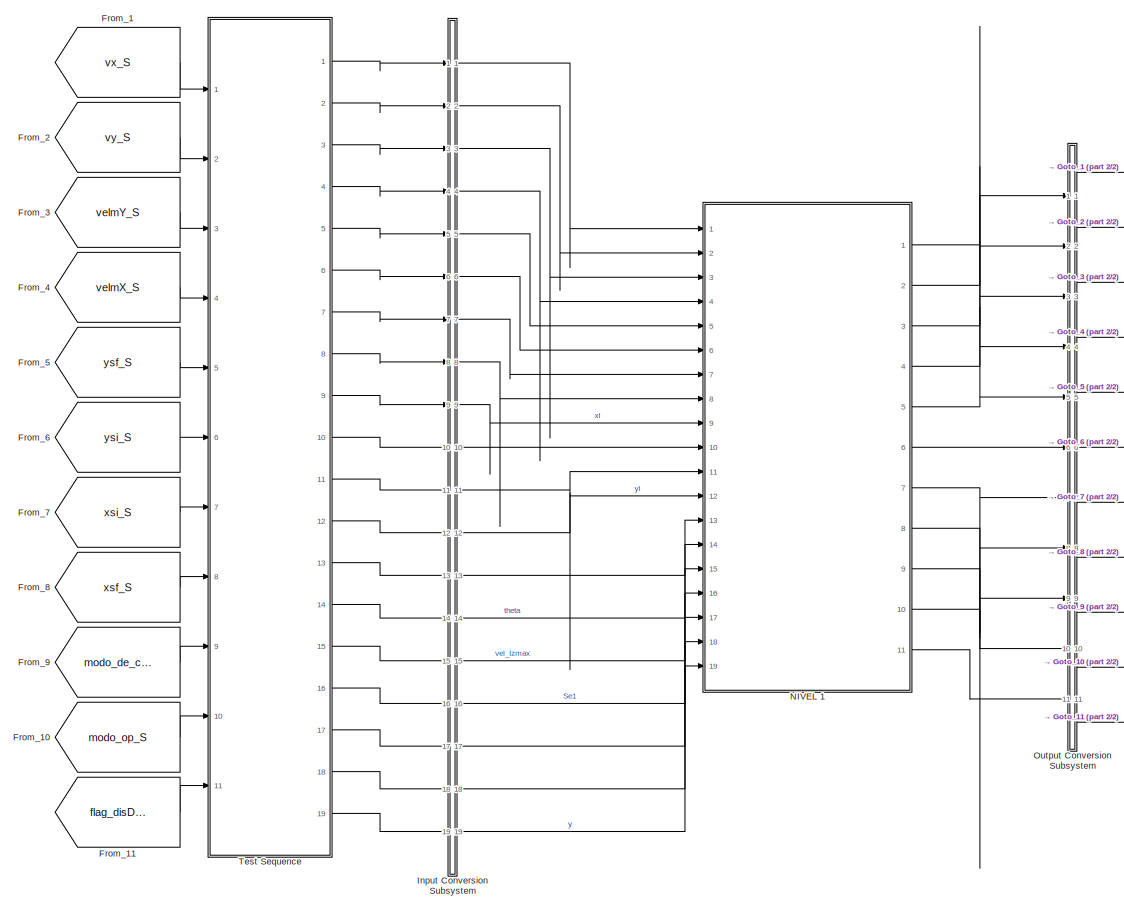
[diagram: root canvas - part 1/2, central region]
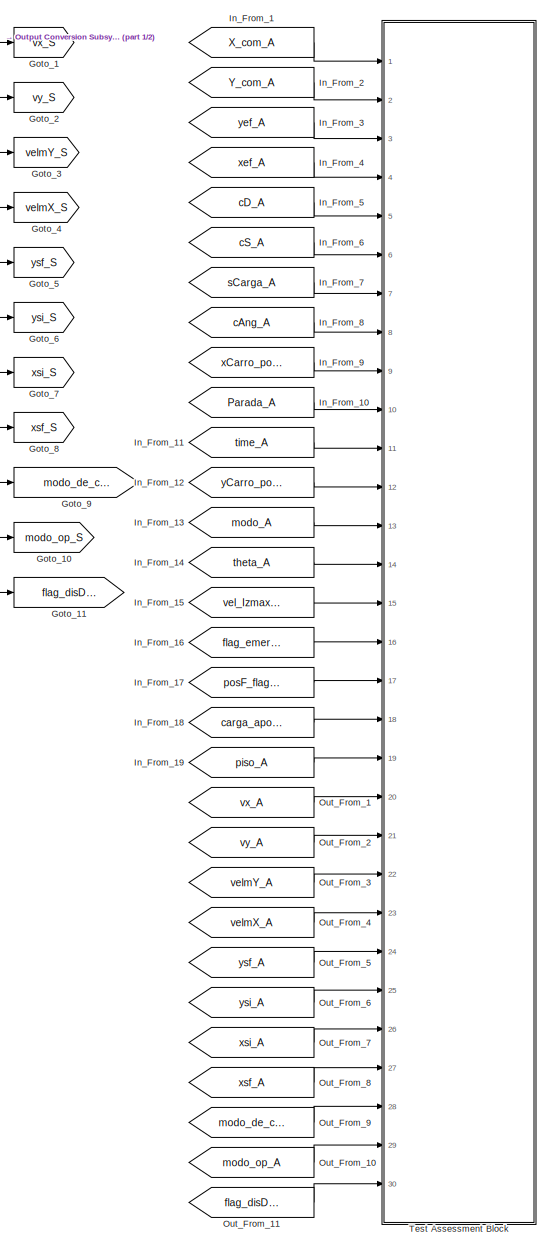
[diagram: root canvas - part 2/2, right side, full height]
MODEL slx_e65b3a4f7e40
KIND model
CONFIG AbsTol = auto
CONFIG EnableMultiTasking = off
CONFIG FixedStep = 1e-2
CONFIG MaxStep = 1e-4
CONFIG MinStep = auto
CONFIG RelTol = 1e-3
CONFIG SampleTimeConstraint = Unconstrained
CONFIG SolverName = FixedStepAuto
CONFIG StartTime = 0.0
CONFIG StopTime = inf
BLOCK [From] From_1
  GotoTag = vx_S
BLOCK [From] From_10
  GotoTag = modo_op_S
BLOCK [From] From_11
  GotoTag = flag_disDesP_S
BLOCK [From] From_2
  GotoTag = vy_S
BLOCK [From] From_3
  GotoTag = velmY_S
BLOCK [From] From_4
  GotoTag = velmX_S
BLOCK [From] From_5
  GotoTag = ysf_S
BLOCK [From] From_6
  GotoTag = ysi_S
BLOCK [From] From_7
  GotoTag = xsi_S
BLOCK [From] From_8
  GotoTag = xsf_S
BLOCK [From] From_9
  GotoTag = modo_de_control_S
BLOCK [Goto] Goto_1
  GotoTag = vx_S
BLOCK [Goto] Goto_10
  GotoTag = modo_op_S
BLOCK [Goto] Goto_11
  GotoTag = flag_disDesP_S
BLOCK [Goto] Goto_2
  GotoTag = vy_S
BLOCK [Goto] Goto_3
  GotoTag = velmY_S
BLOCK [Goto] Goto_4
  GotoTag = velmX_S
BLOCK [Goto] Goto_5
  GotoTag = ysf_S
BLOCK [Goto] Goto_6
  GotoTag = ysi_S
BLOCK [Goto] Goto_7
  GotoTag = xsi_S
BLOCK [Goto] Goto_8
  GotoTag = xsf_S
BLOCK [Goto] Goto_9
  GotoTag = modo_de_control_S
BLOCK [From] In_From_1
  GotoTag = X_com_A
  TagVisibility = global
BLOCK [From] In_From_10
  GotoTag = Parada_A
  TagVisibility = global
BLOCK [From] In_From_11
  GotoTag = time_A
  TagVisibility = global
BLOCK [From] In_From_12
  GotoTag = yCarro_pos_A
  TagVisibility = global
BLOCK [From] In_From_13
  GotoTag = modo_A
  TagVisibility = global
BLOCK [From] In_From_14
  GotoTag = theta_A
  TagVisibility = global
BLOCK [From] In_From_15
  GotoTag = vel_Izmax_A
  TagVisibility = global
BLOCK [From] In_From_16
  GotoTag = flag_emergencia_A
  TagVisibility = global
BLOCK [From] In_From_17
  GotoTag = posF_flag_A
  TagVisibility = global
BLOCK [From] In_From_18
  GotoTag = carga_apoyada_A
  TagVisibility = global
BLOCK [From] In_From_19
  GotoTag = piso_A
  TagVisibility = global
BLOCK [From] In_From_2
  GotoTag = Y_com_A
  TagVisibility = global
BLOCK [From] In_From_3
  GotoTag = yef_A
  TagVisibility = global
BLOCK [From] In_From_4
  GotoTag = xef_A
  TagVisibility = global
BLOCK [From] In_From_5
  GotoTag = cD_A
  TagVisibility = global
BLOCK [From] In_From_6
  GotoTag = cS_A
  TagVisibility = global
BLOCK [From] In_From_7
  GotoTag = sCarga_A
  TagVisibility = global
BLOCK [From] In_From_8
  GotoTag = cAng_A
  TagVisibility = global
BLOCK [From] In_From_9
  GotoTag = xCarro_pos_A
  TagVisibility = global
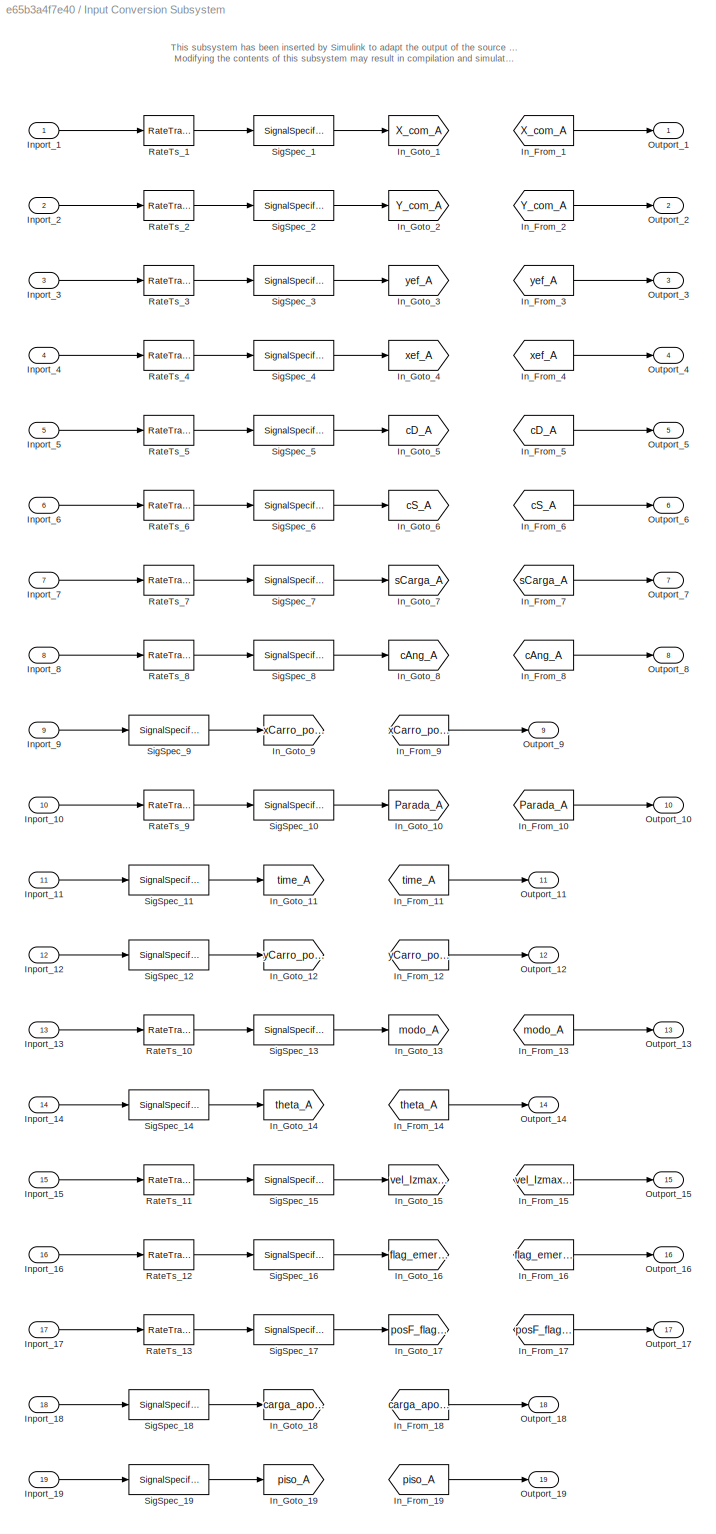
BLOCK [SubSystem] Input Conversion Subsystem
  AttributesFormatString = %<Description>
  Description = Signal spec.\nand routing
  Permissions = ReadOnly
  PermitHierarchicalResolution = ExplicitOnly
  Ports = [19, 19]
  RequestExecContextInheritance = off
  Tag = __SLT_ICS__
  UserDataPersistent = on
BLOCK [From] Input Conversion Subsystem/In_From_1
  GotoTag = X_com_A
  TagVisibility = global
BLOCK [From] Input Conversion Subsystem/In_From_10
  GotoTag = Parada_A
  TagVisibility = global
BLOCK [From] Input Conversion Subsystem/In_From_11
  GotoTag = time_A
  TagVisibility = global
BLOCK [From] Input Conversion Subsystem/In_From_12
  GotoTag = yCarro_pos_A
  TagVisibility = global
BLOCK [From] Input Conversion Subsystem/In_From_13
  GotoTag = modo_A
  TagVisibility = global
BLOCK [From] Input Conversion Subsystem/In_From_14
  GotoTag = theta_A
  TagVisibility = global
BLOCK [From] Input Conversion Subsystem/In_From_15
  GotoTag = vel_Izmax_A
  TagVisibility = global
BLOCK [From] Input Conversion Subsystem/In_From_16
  GotoTag = flag_emergencia_A
  TagVisibility = global
BLOCK [From] Input Conversion Subsystem/In_From_17
  GotoTag = posF_flag_A
  TagVisibility = global
BLOCK [From] Input Conversion Subsystem/In_From_18
  GotoTag = carga_apoyada_A
  TagVisibility = global
BLOCK [From] Input Conversion Subsystem/In_From_19
  GotoTag = piso_A
  TagVisibility = global
BLOCK [From] Input Conversion Subsystem/In_From_2
  GotoTag = Y_com_A
  TagVisibility = global
BLOCK [From] Input Conversion Subsystem/In_From_3
  GotoTag = yef_A
  TagVisibility = global
BLOCK [From] Input Conversion Subsystem/In_From_4
  GotoTag = xef_A
  TagVisibility = global
BLOCK [From] Input Conversion Subsystem/In_From_5
  GotoTag = cD_A
  TagVisibility = global
BLOCK [From] Input Conversion Subsystem/In_From_6
  GotoTag = cS_A
  TagVisibility = global
BLOCK [From] Input Conversion Subsystem/In_From_7
  GotoTag = sCarga_A
  TagVisibility = global
BLOCK [From] Input Conversion Subsystem/In_From_8
  GotoTag = cAng_A
  TagVisibility = global
BLOCK [From] Input Conversion Subsystem/In_From_9
  GotoTag = xCarro_pos_A
  TagVisibility = global
BLOCK [Goto] Input Conversion Subsystem/In_Goto_1
  GotoTag = X_com_A
  TagVisibility = global
BLOCK [Goto] Input Conversion Subsystem/In_Goto_10
  GotoTag = Parada_A
  TagVisibility = global
BLOCK [Goto] Input Conversion Subsystem/In_Goto_11
  GotoTag = time_A
  TagVisibility = global
BLOCK [Goto] Input Conversion Subsystem/In_Goto_12
  GotoTag = yCarro_pos_A
  TagVisibility = global
BLOCK [Goto] Input Conversion Subsystem/In_Goto_13
  GotoTag = modo_A
  TagVisibility = global
BLOCK [Goto] Input Conversion Subsystem/In_Goto_14
  GotoTag = theta_A
  TagVisibility = global
BLOCK [Goto] Input Conversion Subsystem/In_Goto_15
  GotoTag = vel_Izmax_A
  TagVisibility = global
BLOCK [Goto] Input Conversion Subsystem/In_Goto_16
  GotoTag = flag_emergencia_A
  TagVisibility = global
BLOCK [Goto] Input Conversion Subsystem/In_Goto_17
  GotoTag = posF_flag_A
  TagVisibility = global
BLOCK [Goto] Input Conversion Subsystem/In_Goto_18
  GotoTag = carga_apoyada_A
  TagVisibility = global
BLOCK [Goto] Input Conversion Subsystem/In_Goto_19
  GotoTag = piso_A
  TagVisibility = global
BLOCK [Goto] Input Conversion Subsystem/In_Goto_2
  GotoTag = Y_com_A
  TagVisibility = global
BLOCK [Goto] Input Conversion Subsystem/In_Goto_3
  GotoTag = yef_A
  TagVisibility = global
BLOCK [Goto] Input Conversion Subsystem/In_Goto_4
  GotoTag = xef_A
  TagVisibility = global
BLOCK [Goto] Input Conversion Subsystem/In_Goto_5
  GotoTag = cD_A
  TagVisibility = global
BLOCK [Goto] Input Conversion Subsystem/In_Goto_6
  GotoTag = cS_A
  TagVisibility = global
BLOCK [Goto] Input Conversion Subsystem/In_Goto_7
  GotoTag = sCarga_A
  TagVisibility = global
BLOCK [Goto] Input Conversion Subsystem/In_Goto_8
  GotoTag = cAng_A
  TagVisibility = global
BLOCK [Goto] Input Conversion Subsystem/In_Goto_9
  GotoTag = xCarro_pos_A
  TagVisibility = global
BLOCK [Inport] Input Conversion Subsystem/Inport_1
BLOCK [Inport] Input Conversion Subsystem/Inport_10
  Port = 10
BLOCK [Inport] Input Conversion Subsystem/Inport_11
  Port = 11
BLOCK [Inport] Input Conversion Subsystem/Inport_12
  Port = 12
BLOCK [Inport] Input Conversion Subsystem/Inport_13
  Port = 13
BLOCK [Inport] Input Conversion Subsystem/Inport_14
  Port = 14
BLOCK [Inport] Input Conversion Subsystem/Inport_15
  Port = 15
BLOCK [Inport] Input Conversion Subsystem/Inport_16
  Port = 16
BLOCK [Inport] Input Conversion Subsystem/Inport_17
  Port = 17
BLOCK [Inport] Input Conversion Subsystem/Inport_18
  Port = 18
BLOCK [Inport] Input Conversion Subsystem/Inport_19
  Port = 19
BLOCK [Inport] Input Conversion Subsystem/Inport_2
  Port = 2
BLOCK [Inport] Input Conversion Subsystem/Inport_3
  Port = 3
BLOCK [Inport] Input Conversion Subsystem/Inport_4
  Port = 4
BLOCK [Inport] Input Conversion Subsystem/Inport_5
  Port = 5
BLOCK [Inport] Input Conversion Subsystem/Inport_6
  Port = 6
BLOCK [Inport] Input Conversion Subsystem/Inport_7
  Port = 7
BLOCK [Inport] Input Conversion Subsystem/Inport_8
  Port = 8
BLOCK [Inport] Input Conversion Subsystem/Inport_9
  Port = 9
BLOCK [Outport] Input Conversion Subsystem/Outport_1
BLOCK [Outport] Input Conversion Subsystem/Outport_10
  Port = 10
BLOCK [Outport] Input Conversion Subsystem/Outport_11
  Port = 11
BLOCK [Outport] Input Conversion Subsystem/Outport_12
  Port = 12
BLOCK [Outport] Input Conversion Subsystem/Outport_13
  Port = 13
BLOCK [Outport] Input Conversion Subsystem/Outport_14
  Port = 14
BLOCK [Outport] Input Conversion Subsystem/Outport_15
  Port = 15
BLOCK [Outport] Input Conversion Subsystem/Outport_16
  Port = 16
BLOCK [Outport] Input Conversion Subsystem/Outport_17
  Port = 17
BLOCK [Outport] Input Conversion Subsystem/Outport_18
  Port = 18
BLOCK [Outport] Input Conversion Subsystem/Outport_19
  Port = 19
BLOCK [Outport] Input Conversion Subsystem/Outport_2
  Port = 2
BLOCK [Outport] Input Conversion Subsystem/Outport_3
  Port = 3
BLOCK [Outport] Input Conversion Subsystem/Outport_4
  Port = 4
BLOCK [Outport] Input Conversion Subsystem/Outport_5
  Port = 5
BLOCK [Outport] Input Conversion Subsystem/Outport_6
  Port = 6
BLOCK [Outport] Input Conversion Subsystem/Outport_7
  Port = 7
BLOCK [Outport] Input Conversion Subsystem/Outport_8
  Port = 8
BLOCK [Outport] Input Conversion Subsystem/Outport_9
  Port = 9
BLOCK [RateTransition] Input Conversion Subsystem/RateTs_1
  OutPortSampleTime = 0.01
BLOCK [RateTransition] Input Conversion Subsystem/RateTs_10
  OutPortSampleTime = 0.01
BLOCK [RateTransition] Input Conversion Subsystem/RateTs_11
  OutPortSampleTime = 0.01
BLOCK [RateTransition] Input Conversion Subsystem/RateTs_12
  OutPortSampleTime = 0.01
BLOCK [RateTransition] Input Conversion Subsystem/RateTs_13
  OutPortSampleTime = [-1, 0]
BLOCK [RateTransition] Input Conversion Subsystem/RateTs_2
  OutPortSampleTime = 0.01
BLOCK [RateTransition] Input Conversion Subsystem/RateTs_3
  OutPortSampleTime = [-1, 0]
BLOCK [RateTransition] Input Conversion Subsystem/RateTs_4
  OutPortSampleTime = [-1, 0]
BLOCK [RateTransition] Input Conversion Subsystem/RateTs_5
  OutPortSampleTime = 0.01
BLOCK [RateTransition] Input Conversion Subsystem/RateTs_6
  OutPortSampleTime = 0.01
BLOCK [RateTransition] Input Conversion Subsystem/RateTs_7
  OutPortSampleTime = [-1, 0]
BLOCK [RateTransition] Input Conversion Subsystem/RateTs_8
  OutPortSampleTime = [-1, 0]
BLOCK [RateTransition] Input Conversion Subsystem/RateTs_9
  OutPortSampleTime = 0.01
BLOCK [SignalSpecification] Input Conversion Subsystem/SigSpec_1
  Dimensions = [1]
  OutDataTypeStr = double
  SampleTime = 0.01
  SignalType = real
  VarSizeSig = No
BLOCK [SignalSpecification] Input Conversion Subsystem/SigSpec_10
  Dimensions = [1]
  OutDataTypeStr = double
  SampleTime = 0.01
  SignalType = real
  VarSizeSig = No
BLOCK [SignalSpecification] Input Conversion Subsystem/SigSpec_11
  Dimensions = [1]
  OutDataTypeStr = double
  SampleTime = [-1, 0]
  SignalType = real
  VarSizeSig = No
BLOCK [SignalSpecification] Input Conversion Subsystem/SigSpec_12
  Dimensions = [1]
  OutDataTypeStr = double
  SampleTime = [-1, 0]
  SignalType = real
  VarSizeSig = No
BLOCK [SignalSpecification] Input Conversion Subsystem/SigSpec_13
  Dimensions = [1]
  OutDataTypeStr = double
  SampleTime = 0.01
  SignalType = real
  VarSizeSig = No
BLOCK [SignalSpecification] Input Conversion Subsystem/SigSpec_14
  Dimensions = [1]
  OutDataTypeStr = double
  SampleTime = [-1, 0]
  SignalType = real
  VarSizeSig = No
BLOCK [SignalSpecification] Input Conversion Subsystem/SigSpec_15
  Dimensions = [1]
  OutDataTypeStr = double
  SampleTime = 0.01
  SignalType = real
  VarSizeSig = No
BLOCK [SignalSpecification] Input Conversion Subsystem/SigSpec_16
  Dimensions = [1]
  OutDataTypeStr = double
  SampleTime = 0.01
  SignalType = real
  VarSizeSig = No
BLOCK [SignalSpecification] Input Conversion Subsystem/SigSpec_17
  Dimensions = [1]
  OutDataTypeStr = double
  SampleTime = [-1, 0]
  SignalType = real
  VarSizeSig = No
BLOCK [SignalSpecification] Input Conversion Subsystem/SigSpec_18
  Dimensions = [1]
  OutDataTypeStr = double
  SampleTime = [-1, 0]
  SignalType = real
  VarSizeSig = No
BLOCK [SignalSpecification] Input Conversion Subsystem/SigSpec_19
  Dimensions = [1]
  OutDataTypeStr = double
  SampleTime = [-1, 0]
  SignalType = real
  VarSizeSig = No
BLOCK [SignalSpecification] Input Conversion Subsystem/SigSpec_2
  Dimensions = [1]
  OutDataTypeStr = double
  SampleTime = 0.01
  SignalType = real
  VarSizeSig = No
BLOCK [SignalSpecification] Input Conversion Subsystem/SigSpec_3
  Dimensions = [1]
  OutDataTypeStr = double
  SampleTime = [-1, 0]
  SignalType = real
  VarSizeSig = No
BLOCK [SignalSpecification] Input Conversion Subsystem/SigSpec_4
  Dimensions = [1]
  OutDataTypeStr = double
  SampleTime = [-1, 0]
  SignalType = real
  VarSizeSig = No
BLOCK [SignalSpecification] Input Conversion Subsystem/SigSpec_5
  Dimensions = [1]
  OutDataTypeStr = double
  SampleTime = 0.01
  SignalType = real
  VarSizeSig = No
BLOCK [SignalSpecification] Input Conversion Subsystem/SigSpec_6
  Dimensions = [1]
  OutDataTypeStr = double
  SampleTime = 0.01
  SignalType = real
  VarSizeSig = No
BLOCK [SignalSpecification] Input Conversion Subsystem/SigSpec_7
  Dimensions = [1]
  OutDataTypeStr = double
  SampleTime = [-1, 0]
  SignalType = real
  VarSizeSig = No
BLOCK [SignalSpecification] Input Conversion Subsystem/SigSpec_8
  Dimensions = [1]
  OutDataTypeStr = double
  SampleTime = [-1, 0]
  SignalType = real
  VarSizeSig = No
BLOCK [SignalSpecification] Input Conversion Subsystem/SigSpec_9
  Dimensions = [1]
  OutDataTypeStr = double
  SampleTime = [-1, 0]
  SignalType = real
  VarSizeSig = No
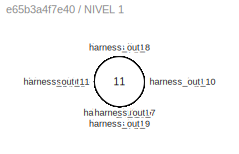
BLOCK [SubSystem] NIVEL 1
  Ports = [19, 11]
  RequestExecContextInheritance = off
  Tag = __SL_testing_harness_stub_
BLOCK [Inport] NIVEL 1/harness_in_1
BLOCK [Inport] NIVEL 1/harness_in_10
  Port = 10
BLOCK [Inport] NIVEL 1/harness_in_11
  Port = 11
BLOCK [Inport] NIVEL 1/harness_in_12
  Port = 12
BLOCK [Inport] NIVEL 1/harness_in_13
  Port = 13
BLOCK [Inport] NIVEL 1/harness_in_14
  Port = 14
BLOCK [Inport] NIVEL 1/harness_in_15
  Port = 15
BLOCK [Inport] NIVEL 1/harness_in_16
  Port = 16
BLOCK [Inport] NIVEL 1/harness_in_17
  Port = 17
BLOCK [Inport] NIVEL 1/harness_in_18
  Port = 18
BLOCK [Inport] NIVEL 1/harness_in_19
  Port = 19
BLOCK [Inport] NIVEL 1/harness_in_2
  Port = 2
BLOCK [Inport] NIVEL 1/harness_in_3
  Port = 3
BLOCK [Inport] NIVEL 1/harness_in_4
  Port = 4
BLOCK [Inport] NIVEL 1/harness_in_5
  Port = 5
BLOCK [Inport] NIVEL 1/harness_in_6
  Port = 6
BLOCK [Inport] NIVEL 1/harness_in_7
  Port = 7
BLOCK [Inport] NIVEL 1/harness_in_8
  Port = 8
BLOCK [Inport] NIVEL 1/harness_in_9
  Port = 9
BLOCK [Outport] NIVEL 1/harness_out_1
BLOCK [Outport] NIVEL 1/harness_out_10
  Port = 10
BLOCK [Outport] NIVEL 1/harness_out_11
  Port = 11
BLOCK [Outport] NIVEL 1/harness_out_2
  Port = 2
BLOCK [Outport] NIVEL 1/harness_out_3
  Port = 3
BLOCK [Outport] NIVEL 1/harness_out_4
  Port = 4
BLOCK [Outport] NIVEL 1/harness_out_5
  Port = 5
BLOCK [Outport] NIVEL 1/harness_out_6
  Port = 6
BLOCK [Outport] NIVEL 1/harness_out_7
  Port = 7
BLOCK [Outport] NIVEL 1/harness_out_8
  Port = 8
BLOCK [Outport] NIVEL 1/harness_out_9
  Port = 9
BLOCK [From] Out_From_1
  GotoTag = vx_A
  TagVisibility = global
BLOCK [From] Out_From_10
  GotoTag = modo_op_A
  TagVisibility = global
BLOCK [From] Out_From_11
  GotoTag = flag_disDesP_A
  TagVisibility = global
BLOCK [From] Out_From_2
  GotoTag = vy_A
  TagVisibility = global
BLOCK [From] Out_From_3
  GotoTag = velmY_A
  TagVisibility = global
BLOCK [From] Out_From_4
  GotoTag = velmX_A
  TagVisibility = global
BLOCK [From] Out_From_5
  GotoTag = ysf_A
  TagVisibility = global
BLOCK [From] Out_From_6
  GotoTag = ysi_A
  TagVisibility = global
BLOCK [From] Out_From_7
  GotoTag = xsi_A
  TagVisibility = global
BLOCK [From] Out_From_8
  GotoTag = xsf_A
  TagVisibility = global
BLOCK [From] Out_From_9
  GotoTag = modo_de_control_A
  TagVisibility = global
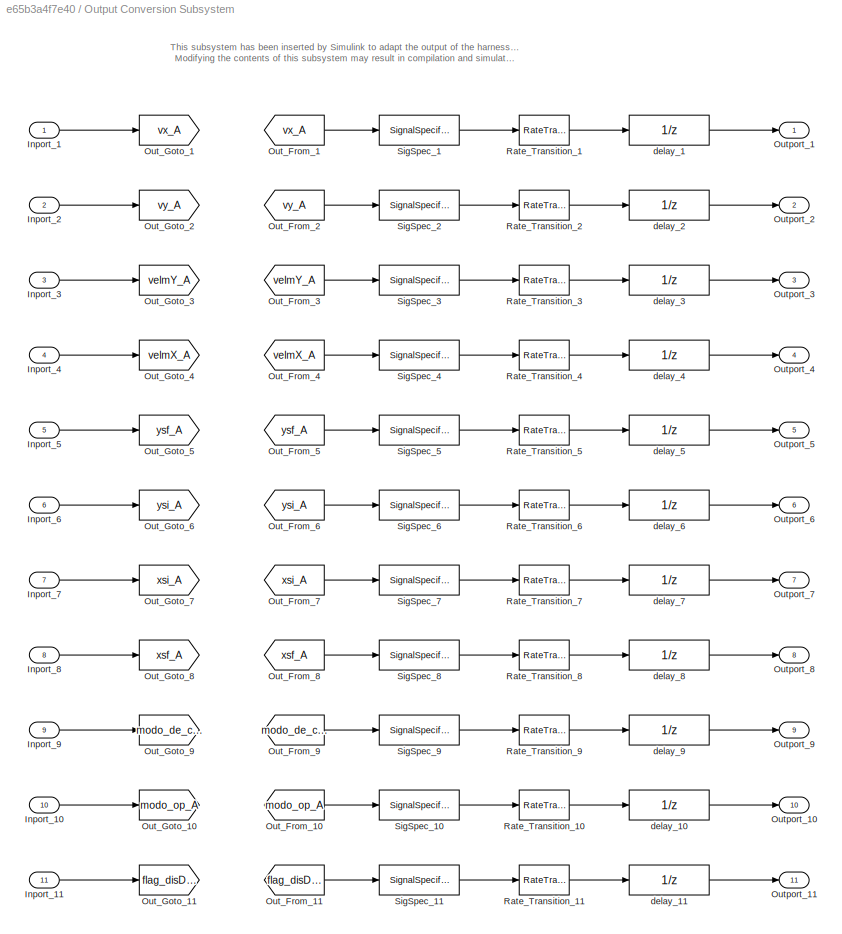
BLOCK [SubSystem] Output Conversion Subsystem
  AttributesFormatString = %<Description>
  Description = Signal spec.\nand routing
  Permissions = ReadOnly
  PermitHierarchicalResolution = ExplicitOnly
  Ports = [11, 11]
  RequestExecContextInheritance = off
  Tag = __SLT_OCS__
  UserDataPersistent = on
BLOCK [Inport] Output Conversion Subsystem/Inport_1
BLOCK [Inport] Output Conversion Subsystem/Inport_10
  Port = 10
BLOCK [Inport] Output Conversion Subsystem/Inport_11
  Port = 11
BLOCK [Inport] Output Conversion Subsystem/Inport_2
  Port = 2
BLOCK [Inport] Output Conversion Subsystem/Inport_3
  Port = 3
BLOCK [Inport] Output Conversion Subsystem/Inport_4
  Port = 4
BLOCK [Inport] Output Conversion Subsystem/Inport_5
  Port = 5
BLOCK [Inport] Output Conversion Subsystem/Inport_6
  Port = 6
BLOCK [Inport] Output Conversion Subsystem/Inport_7
  Port = 7
BLOCK [Inport] Output Conversion Subsystem/Inport_8
  Port = 8
BLOCK [Inport] Output Conversion Subsystem/Inport_9
  Port = 9
BLOCK [From] Output Conversion Subsystem/Out_From_1
  GotoTag = vx_A
  TagVisibility = global
BLOCK [From] Output Conversion Subsystem/Out_From_10
  GotoTag = modo_op_A
  TagVisibility = global
BLOCK [From] Output Conversion Subsystem/Out_From_11
  GotoTag = flag_disDesP_A
  TagVisibility = global
BLOCK [From] Output Conversion Subsystem/Out_From_2
  GotoTag = vy_A
  TagVisibility = global
BLOCK [From] Output Conversion Subsystem/Out_From_3
  GotoTag = velmY_A
  TagVisibility = global
BLOCK [From] Output Conversion Subsystem/Out_From_4
  GotoTag = velmX_A
  TagVisibility = global
BLOCK [From] Output Conversion Subsystem/Out_From_5
  GotoTag = ysf_A
  TagVisibility = global
BLOCK [From] Output Conversion Subsystem/Out_From_6
  GotoTag = ysi_A
  TagVisibility = global
BLOCK [From] Output Conversion Subsystem/Out_From_7
  GotoTag = xsi_A
  TagVisibility = global
BLOCK [From] Output Conversion Subsystem/Out_From_8
  GotoTag = xsf_A
  TagVisibility = global
BLOCK [From] Output Conversion Subsystem/Out_From_9
  GotoTag = modo_de_control_A
  TagVisibility = global
BLOCK [Goto] Output Conversion Subsystem/Out_Goto_1
  GotoTag = vx_A
  TagVisibility = global
BLOCK [Goto] Output Conversion Subsystem/Out_Goto_10
  GotoTag = modo_op_A
  TagVisibility = global
BLOCK [Goto] Output Conversion Subsystem/Out_Goto_11
  GotoTag = flag_disDesP_A
  TagVisibility = global
BLOCK [Goto] Output Conversion Subsystem/Out_Goto_2
  GotoTag = vy_A
  TagVisibility = global
BLOCK [Goto] Output Conversion Subsystem/Out_Goto_3
  GotoTag = velmY_A
  TagVisibility = global
BLOCK [Goto] Output Conversion Subsystem/Out_Goto_4
  GotoTag = velmX_A
  TagVisibility = global
BLOCK [Goto] Output Conversion Subsystem/Out_Goto_5
  GotoTag = ysf_A
  TagVisibility = global
BLOCK [Goto] Output Conversion Subsystem/Out_Goto_6
  GotoTag = ysi_A
  TagVisibility = global
BLOCK [Goto] Output Conversion Subsystem/Out_Goto_7
  GotoTag = xsi_A
  TagVisibility = global
BLOCK [Goto] Output Conversion Subsystem/Out_Goto_8
  GotoTag = xsf_A
  TagVisibility = global
BLOCK [Goto] Output Conversion Subsystem/Out_Goto_9
  GotoTag = modo_de_control_A
  TagVisibility = global
BLOCK [Outport] Output Conversion Subsystem/Outport_1
BLOCK [Outport] Output Conversion Subsystem/Outport_10
  Port = 10
BLOCK [Outport] Output Conversion Subsystem/Outport_11
  Port = 11
BLOCK [Outport] Output Conversion Subsystem/Outport_2
  Port = 2
BLOCK [Outport] Output Conversion Subsystem/Outport_3
  Port = 3
BLOCK [Outport] Output Conversion Subsystem/Outport_4
  Port = 4
BLOCK [Outport] Output Conversion Subsystem/Outport_5
  Port = 5
BLOCK [Outport] Output Conversion Subsystem/Outport_6
  Port = 6
BLOCK [Outport] Output Conversion Subsystem/Outport_7
  Port = 7
BLOCK [Outport] Output Conversion Subsystem/Outport_8
  Port = 8
BLOCK [Outport] Output Conversion Subsystem/Outport_9
  Port = 9
BLOCK [RateTransition] Output Conversion Subsystem/Rate_Transition_1
  OutPortSampleTimeOpt = Inherit
BLOCK [RateTransition] Output Conversion Subsystem/Rate_Transition_10
  OutPortSampleTimeOpt = Inherit
BLOCK [RateTransition] Output Conversion Subsystem/Rate_Transition_11
  OutPortSampleTimeOpt = Inherit
BLOCK [RateTransition] Output Conversion Subsystem/Rate_Transition_2
  OutPortSampleTimeOpt = Inherit
BLOCK [RateTransition] Output Conversion Subsystem/Rate_Transition_3
  OutPortSampleTimeOpt = Inherit
BLOCK [RateTransition] Output Conversion Subsystem/Rate_Transition_4
  OutPortSampleTimeOpt = Inherit
BLOCK [RateTransition] Output Conversion Subsystem/Rate_Transition_5
  OutPortSampleTimeOpt = Inherit
BLOCK [RateTransition] Output Conversion Subsystem/Rate_Transition_6
  OutPortSampleTimeOpt = Inherit
BLOCK [RateTransition] Output Conversion Subsystem/Rate_Transition_7
  OutPortSampleTimeOpt = Inherit
BLOCK [RateTransition] Output Conversion Subsystem/Rate_Transition_8
  OutPortSampleTimeOpt = Inherit
BLOCK [RateTransition] Output Conversion Subsystem/Rate_Transition_9
  OutPortSampleTimeOpt = Inherit
BLOCK [SignalSpecification] Output Conversion Subsystem/SigSpec_1
  Dimensions = [1]
  OutDataTypeStr = double
  SampleTime = 0.01
  SignalType = real
  VarSizeSig = No
BLOCK [SignalSpecification] Output Conversion Subsystem/SigSpec_10
  Dimensions = [1]
  OutDataTypeStr = double
  SampleTime = 0.01
  SignalType = real
  VarSizeSig = No
BLOCK [SignalSpecification] Output Conversion Subsystem/SigSpec_11
  Dimensions = [1]
  OutDataTypeStr = double
  SampleTime = 0.01
  SignalType = real
  VarSizeSig = No
BLOCK [SignalSpecification] Output Conversion Subsystem/SigSpec_2
  Dimensions = [1]
  OutDataTypeStr = double
  SampleTime = 0.01
  SignalType = real
  VarSizeSig = No
BLOCK [SignalSpecification] Output Conversion Subsystem/SigSpec_3
  Dimensions = [1]
  OutDataTypeStr = double
  SampleTime = 0.01
  SignalType = real
  VarSizeSig = No
BLOCK [SignalSpecification] Output Conversion Subsystem/SigSpec_4
  Dimensions = [1]
  OutDataTypeStr = double
  SampleTime = 0.01
  SignalType = real
  VarSizeSig = No
BLOCK [SignalSpecification] Output Conversion Subsystem/SigSpec_5
  Dimensions = [1]
  OutDataTypeStr = double
  SampleTime = 0.01
  SignalType = real
  VarSizeSig = No
BLOCK [SignalSpecification] Output Conversion Subsystem/SigSpec_6
  Dimensions = [1]
  OutDataTypeStr = double
  SampleTime = 0.01
  SignalType = real
  VarSizeSig = No
BLOCK [SignalSpecification] Output Conversion Subsystem/SigSpec_7
  Dimensions = [1]
  OutDataTypeStr = double
  SampleTime = 0.01
  SignalType = real
  VarSizeSig = No
BLOCK [SignalSpecification] Output Conversion Subsystem/SigSpec_8
  Dimensions = [1]
  OutDataTypeStr = double
  SampleTime = 0.01
  SignalType = real
  VarSizeSig = No
BLOCK [SignalSpecification] Output Conversion Subsystem/SigSpec_9
  Dimensions = [1, 1]
  OutDataTypeStr = double
  SampleTime = 0.01
  SignalType = real
  VarSizeSig = No
BLOCK [UnitDelay] Output Conversion Subsystem/delay_1
  SampleTime = -1
BLOCK [UnitDelay] Output Conversion Subsystem/delay_10
  SampleTime = -1
BLOCK [UnitDelay] Output Conversion Subsystem/delay_11
  SampleTime = -1
BLOCK [UnitDelay] Output Conversion Subsystem/delay_2
  SampleTime = -1
BLOCK [UnitDelay] Output Conversion Subsystem/delay_3
  SampleTime = -1
BLOCK [UnitDelay] Output Conversion Subsystem/delay_4
  SampleTime = -1
BLOCK [UnitDelay] Output Conversion Subsystem/delay_5
  SampleTime = -1
BLOCK [UnitDelay] Output Conversion Subsystem/delay_6
  SampleTime = -1
BLOCK [UnitDelay] Output Conversion Subsystem/delay_7
  SampleTime = -1
BLOCK [UnitDelay] Output Conversion Subsystem/delay_8
  SampleTime = -1
BLOCK [UnitDelay] Output Conversion Subsystem/delay_9
  SampleTime = -1
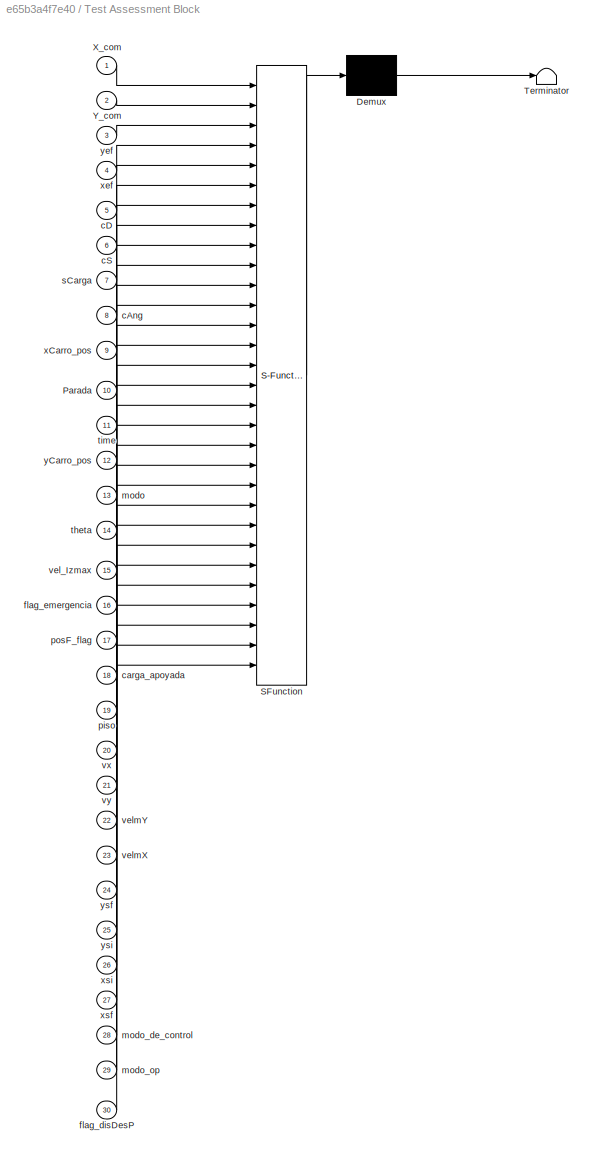
BLOCK [SubSystem] Test Assessment Block
  ErrorFcn = Stateflow.Translate.translate
  PermitHierarchicalResolution = ExplicitOnly
  Ports = [30]
  RequestExecContextInheritance = off
  SFBlockType = Test Sequence
  ShowPortLabels = none
  Tag = __SLT_ASMT__
  TreatAsAtomicUnit = on
BLOCK [Demux] Test Assessment Block/ Demux 
  Outputs = 1
  Ports = [1, 1]
BLOCK [S-Function] Test Assessment Block/ SFunction 
  EnableBusSupport = off
  FunctionName = sf_sfun
  PortCounts = [30 1]
  Ports = [30, 1]
  SFcnIsStateOwnerBlock = off
  SFunctionDeploymentMode = off
  Tag = Stateflow S-Function 1
BLOCK [Terminator] Test Assessment Block/ Terminator 
BLOCK [Inport] Test Assessment Block/Parada
  Port = 10
BLOCK [Inport] Test Assessment Block/X_com
BLOCK [Inport] Test Assessment Block/Y_com
  Port = 2
BLOCK [Inport] Test Assessment Block/cAng
  Port = 8
BLOCK [Inport] Test Assessment Block/cD
  Port = 5
BLOCK [Inport] Test Assessment Block/cS
  Port = 6
BLOCK [Inport] Test Assessment Block/carga_apoyada
  Port = 18
BLOCK [Inport] Test Assessment Block/flag_disDesP
  Port = 30
BLOCK [Inport] Test Assessment Block/flag_emergencia
  Port = 16
BLOCK [Inport] Test Assessment Block/modo
  Port = 13
BLOCK [Inport] Test Assessment Block/modo_de_control
  Port = 28
BLOCK [Inport] Test Assessment Block/modo_op
  Port = 29
BLOCK [Inport] Test Assessment Block/piso
  Port = 19
BLOCK [Inport] Test Assessment Block/posF_flag
  Port = 17
BLOCK [Inport] Test Assessment Block/sCarga
  Port = 7
BLOCK [Inport] Test Assessment Block/theta
  Port = 14
BLOCK [Inport] Test Assessment Block/time
  Port = 11
BLOCK [Inport] Test Assessment Block/vel_Izmax
  Port = 15
BLOCK [Inport] Test Assessment Block/velmX
  Port = 23
BLOCK [Inport] Test Assessment Block/velmY
  Port = 22
BLOCK [Inport] Test Assessment Block/vx
  Port = 20
BLOCK [Inport] Test Assessment Block/vy
  Port = 21
BLOCK [Inport] Test Assessment Block/xCarro_pos
  Port = 9
BLOCK [Inport] Test Assessment Block/xef
  Port = 4
BLOCK [Inport] Test Assessment Block/xsf
  Port = 27
BLOCK [Inport] Test Assessment Block/xsi
  Port = 26
BLOCK [Inport] Test Assessment Block/yCarro_pos
  Port = 12
BLOCK [Inport] Test Assessment Block/yef
  Port = 3
BLOCK [Inport] Test Assessment Block/ysf
  Port = 24
BLOCK [Inport] Test Assessment Block/ysi
  Port = 25
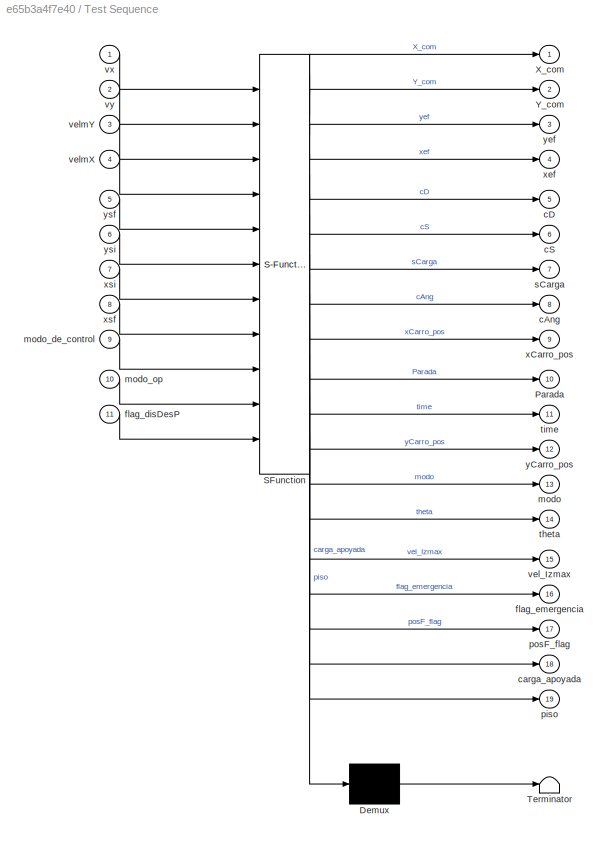
BLOCK [SubSystem] Test Sequence
  ErrorFcn = Stateflow.Translate.translate
  PermitHierarchicalResolution = ExplicitOnly
  Ports = [11, 19]
  RequestExecContextInheritance = off
  SFBlockType = Test Sequence
  ShowPortLabels = none
  TreatAsAtomicUnit = on
BLOCK [Demux] Test Sequence/ Demux 
  Outputs = 1
  Ports = [1, 1]
BLOCK [S-Function] Test Sequence/ SFunction 
  EnableBusSupport = off
  FunctionName = sf_sfun
  PortCounts = [11 20]
  Ports = [11, 20]
  SFcnIsStateOwnerBlock = off
  SFunctionDeploymentMode = off
  Tag = Stateflow S-Function 4
BLOCK [Terminator] Test Sequence/ Terminator 
BLOCK [Outport] Test Sequence/Parada
  Port = 10
BLOCK [Outport] Test Sequence/X_com
BLOCK [Outport] Test Sequence/Y_com
  Port = 2
BLOCK [Outport] Test Sequence/cAng
  Port = 8
BLOCK [Outport] Test Sequence/cD
  Port = 5
BLOCK [Outport] Test Sequence/cS
  Port = 6
BLOCK [Outport] Test Sequence/carga_apoyada
  Port = 18
BLOCK [Inport] Test Sequence/flag_disDesP
  Port = 11
BLOCK [Outport] Test Sequence/flag_emergencia
  Port = 16
BLOCK [Outport] Test Sequence/modo
  Port = 13
BLOCK [Inport] Test Sequence/modo_de_control
  Port = 9
BLOCK [Inport] Test Sequence/modo_op
  Port = 10
BLOCK [Outport] Test Sequence/piso
  Port = 19
BLOCK [Outport] Test Sequence/posF_flag
  Port = 17
BLOCK [Outport] Test Sequence/sCarga
  Port = 7
BLOCK [Outport] Test Sequence/theta
  Port = 14
BLOCK [Outport] Test Sequence/time
  Port = 11
BLOCK [Outport] Test Sequence/vel_Izmax
  Port = 15
BLOCK [Inport] Test Sequence/velmX
  Port = 4
BLOCK [Inport] Test Sequence/velmY
  Port = 3
BLOCK [Inport] Test Sequence/vx
BLOCK [Inport] Test Sequence/vy
  Port = 2
BLOCK [Outport] Test Sequence/xCarro_pos
  Port = 9
BLOCK [Outport] Test Sequence/xef
  Port = 4
BLOCK [Inport] Test Sequence/xsf
  Port = 8
BLOCK [Inport] Test Sequence/xsi
  Port = 7
BLOCK [Outport] Test Sequence/yCarro_pos
  Port = 12
BLOCK [Outport] Test Sequence/yef
  Port = 3
BLOCK [Inport] Test Sequence/ysf
  Port = 5
BLOCK [Inport] Test Sequence/ysi
  Port = 6
ANNOTATION Input Conversion Subsystem: This subsystem has been inserted by Simulink to adapt the output of the source blocks to the interface required by the harnessed component. Modifying the contents of this subsystem may result in compilation and simulation failure.
ANNOTATION Output Conversion Subsystem: This subsystem has been inserted by Simulink to adapt the output of the harnessed component to the interface required by the sink blocks. Modifying the contents of this subsystem may result in compilation and simulation failure.
LINE From_10:1 -> Test Sequence:10
LINE From_11:1 -> Test Sequence:11
LINE From_1:1 -> Test Sequence:1
LINE From_2:1 -> Test Sequence:2
LINE From_3:1 -> Test Sequence:3
LINE From_4:1 -> Test Sequence:4
LINE From_5:1 -> Test Sequence:5
LINE From_6:1 -> Test Sequence:6
LINE From_7:1 -> Test Sequence:7
LINE From_8:1 -> Test Sequence:8
LINE From_9:1 -> Test Sequence:9
LINE In_From_10:1 -> Test Assessment Block:10
LINE In_From_11:1 -> Test Assessment Block:11
LINE In_From_12:1 -> Test Assessment Block:12
LINE In_From_13:1 -> Test Assessment Block:13
LINE In_From_14:1 -> Test Assessment Block:14
LINE In_From_15:1 -> Test Assessment Block:15
LINE In_From_16:1 -> Test Assessment Block:16
LINE In_From_17:1 -> Test Assessment Block:17
LINE In_From_18:1 -> Test Assessment Block:18
LINE In_From_19:1 -> Test Assessment Block:19
LINE In_From_1:1 -> Test Assessment Block:1
LINE In_From_2:1 -> Test Assessment Block:2
LINE In_From_3:1 -> Test Assessment Block:3
LINE In_From_4:1 -> Test Assessment Block:4
LINE In_From_5:1 -> Test Assessment Block:5
LINE In_From_6:1 -> Test Assessment Block:6
LINE In_From_7:1 -> Test Assessment Block:7
LINE In_From_8:1 -> Test Assessment Block:8
LINE In_From_9:1 -> Test Assessment Block:9
LINE Input Conversion Subsystem/In_From_10:1 -> Input Conversion Subsystem/Outport_10:1
LINE Input Conversion Subsystem/In_From_11:1 -> Input Conversion Subsystem/Outport_11:1
LINE Input Conversion Subsystem/In_From_12:1 -> Input Conversion Subsystem/Outport_12:1
LINE Input Conversion Subsystem/In_From_13:1 -> Input Conversion Subsystem/Outport_13:1
LINE Input Conversion Subsystem/In_From_14:1 -> Input Conversion Subsystem/Outport_14:1
LINE Input Conversion Subsystem/In_From_15:1 -> Input Conversion Subsystem/Outport_15:1
LINE Input Conversion Subsystem/In_From_16:1 -> Input Conversion Subsystem/Outport_16:1
LINE Input Conversion Subsystem/In_From_17:1 -> Input Conversion Subsystem/Outport_17:1
LINE Input Conversion Subsystem/In_From_18:1 -> Input Conversion Subsystem/Outport_18:1
LINE Input Conversion Subsystem/In_From_19:1 -> Input Conversion Subsystem/Outport_19:1
LINE Input Conversion Subsystem/In_From_1:1 -> Input Conversion Subsystem/Outport_1:1
LINE Input Conversion Subsystem/In_From_2:1 -> Input Conversion Subsystem/Outport_2:1
LINE Input Conversion Subsystem/In_From_3:1 -> Input Conversion Subsystem/Outport_3:1
LINE Input Conversion Subsystem/In_From_4:1 -> Input Conversion Subsystem/Outport_4:1
LINE Input Conversion Subsystem/In_From_5:1 -> Input Conversion Subsystem/Outport_5:1
LINE Input Conversion Subsystem/In_From_6:1 -> Input Conversion Subsystem/Outport_6:1
LINE Input Conversion Subsystem/In_From_7:1 -> Input Conversion Subsystem/Outport_7:1
LINE Input Conversion Subsystem/In_From_8:1 -> Input Conversion Subsystem/Outport_8:1
LINE Input Conversion Subsystem/In_From_9:1 -> Input Conversion Subsystem/Outport_9:1
LINE Input Conversion Subsystem/Inport_10:1 -> Input Conversion Subsystem/RateTs_9:1
LINE Input Conversion Subsystem/Inport_11:1 -> Input Conversion Subsystem/SigSpec_11:1
LINE Input Conversion Subsystem/Inport_12:1 -> Input Conversion Subsystem/SigSpec_12:1
LINE Input Conversion Subsystem/Inport_13:1 -> Input Conversion Subsystem/RateTs_10:1
LINE Input Conversion Subsystem/Inport_14:1 -> Input Conversion Subsystem/SigSpec_14:1
LINE Input Conversion Subsystem/Inport_15:1 -> Input Conversion Subsystem/RateTs_11:1
LINE Input Conversion Subsystem/Inport_16:1 -> Input Conversion Subsystem/RateTs_12:1
LINE Input Conversion Subsystem/Inport_17:1 -> Input Conversion Subsystem/RateTs_13:1
LINE Input Conversion Subsystem/Inport_18:1 -> Input Conversion Subsystem/SigSpec_18:1
LINE Input Conversion Subsystem/Inport_19:1 -> Input Conversion Subsystem/SigSpec_19:1
LINE Input Conversion Subsystem/Inport_1:1 -> Input Conversion Subsystem/RateTs_1:1
LINE Input Conversion Subsystem/Inport_2:1 -> Input Conversion Subsystem/RateTs_2:1
LINE Input Conversion Subsystem/Inport_3:1 -> Input Conversion Subsystem/RateTs_3:1
LINE Input Conversion Subsystem/Inport_4:1 -> Input Conversion Subsystem/RateTs_4:1
LINE Input Conversion Subsystem/Inport_5:1 -> Input Conversion Subsystem/RateTs_5:1
LINE Input Conversion Subsystem/Inport_6:1 -> Input Conversion Subsystem/RateTs_6:1
LINE Input Conversion Subsystem/Inport_7:1 -> Input Conversion Subsystem/RateTs_7:1
LINE Input Conversion Subsystem/Inport_8:1 -> Input Conversion Subsystem/RateTs_8:1
LINE Input Conversion Subsystem/Inport_9:1 -> Input Conversion Subsystem/SigSpec_9:1
LINE Input Conversion Subsystem/RateTs_10:1 -> Input Conversion Subsystem/SigSpec_13:1
LINE Input Conversion Subsystem/RateTs_11:1 -> Input Conversion Subsystem/SigSpec_15:1
LINE Input Conversion Subsystem/RateTs_12:1 -> Input Conversion Subsystem/SigSpec_16:1
LINE Input Conversion Subsystem/RateTs_13:1 -> Input Conversion Subsystem/SigSpec_17:1
LINE Input Conversion Subsystem/RateTs_1:1 -> Input Conversion Subsystem/SigSpec_1:1
LINE Input Conversion Subsystem/RateTs_2:1 -> Input Conversion Subsystem/SigSpec_2:1
LINE Input Conversion Subsystem/RateTs_3:1 -> Input Conversion Subsystem/SigSpec_3:1
LINE Input Conversion Subsystem/RateTs_4:1 -> Input Conversion Subsystem/SigSpec_4:1
LINE Input Conversion Subsystem/RateTs_5:1 -> Input Conversion Subsystem/SigSpec_5:1
LINE Input Conversion Subsystem/RateTs_6:1 -> Input Conversion Subsystem/SigSpec_6:1
LINE Input Conversion Subsystem/RateTs_7:1 -> Input Conversion Subsystem/SigSpec_7:1
LINE Input Conversion Subsystem/RateTs_8:1 -> Input Conversion Subsystem/SigSpec_8:1
LINE Input Conversion Subsystem/RateTs_9:1 -> Input Conversion Subsystem/SigSpec_10:1
LINE Input Conversion Subsystem/SigSpec_10:1 -> Input Conversion Subsystem/In_Goto_10:1
LINE Input Conversion Subsystem/SigSpec_11:1 -> Input Conversion Subsystem/In_Goto_11:1
LINE Input Conversion Subsystem/SigSpec_12:1 -> Input Conversion Subsystem/In_Goto_12:1
LINE Input Conversion Subsystem/SigSpec_13:1 -> Input Conversion Subsystem/In_Goto_13:1
LINE Input Conversion Subsystem/SigSpec_14:1 -> Input Conversion Subsystem/In_Goto_14:1
LINE Input Conversion Subsystem/SigSpec_15:1 -> Input Conversion Subsystem/In_Goto_15:1
LINE Input Conversion Subsystem/SigSpec_16:1 -> Input Conversion Subsystem/In_Goto_16:1
LINE Input Conversion Subsystem/SigSpec_17:1 -> Input Conversion Subsystem/In_Goto_17:1
LINE Input Conversion Subsystem/SigSpec_18:1 -> Input Conversion Subsystem/In_Goto_18:1
LINE Input Conversion Subsystem/SigSpec_19:1 -> Input Conversion Subsystem/In_Goto_19:1
LINE Input Conversion Subsystem/SigSpec_1:1 -> Input Conversion Subsystem/In_Goto_1:1
LINE Input Conversion Subsystem/SigSpec_2:1 -> Input Conversion Subsystem/In_Goto_2:1
LINE Input Conversion Subsystem/SigSpec_3:1 -> Input Conversion Subsystem/In_Goto_3:1
LINE Input Conversion Subsystem/SigSpec_4:1 -> Input Conversion Subsystem/In_Goto_4:1
LINE Input Conversion Subsystem/SigSpec_5:1 -> Input Conversion Subsystem/In_Goto_5:1
LINE Input Conversion Subsystem/SigSpec_6:1 -> Input Conversion Subsystem/In_Goto_6:1
LINE Input Conversion Subsystem/SigSpec_7:1 -> Input Conversion Subsystem/In_Goto_7:1
LINE Input Conversion Subsystem/SigSpec_8:1 -> Input Conversion Subsystem/In_Goto_8:1
LINE Input Conversion Subsystem/SigSpec_9:1 -> Input Conversion Subsystem/In_Goto_9:1
LINE Input Conversion Subsystem:1 -> NIVEL 1:1
LINE Input Conversion Subsystem:10 -> NIVEL 1:10
LINE Input Conversion Subsystem:11 -> NIVEL 1:11
LINE Input Conversion Subsystem:12 -> NIVEL 1:12
LINE Input Conversion Subsystem:13 -> NIVEL 1:13
LINE Input Conversion Subsystem:14 -> NIVEL 1:14
LINE Input Conversion Subsystem:15 -> NIVEL 1:15
LINE Input Conversion Subsystem:16 -> NIVEL 1:16
LINE Input Conversion Subsystem:17 -> NIVEL 1:17
LINE Input Conversion Subsystem:18 -> NIVEL 1:18
LINE Input Conversion Subsystem:19 -> NIVEL 1:19
LINE Input Conversion Subsystem:2 -> NIVEL 1:2
LINE Input Conversion Subsystem:3 -> NIVEL 1:3
LINE Input Conversion Subsystem:4 -> NIVEL 1:4
LINE Input Conversion Subsystem:5 -> NIVEL 1:5
LINE Input Conversion Subsystem:6 -> NIVEL 1:6
LINE Input Conversion Subsystem:7 -> NIVEL 1:7
LINE Input Conversion Subsystem:8 -> NIVEL 1:8
LINE Input Conversion Subsystem:9 -> NIVEL 1:9
LINE NIVEL 1:1 -> Output Conversion Subsystem:1
LINE NIVEL 1:10 -> Output Conversion Subsystem:10
LINE NIVEL 1:11 -> Output Conversion Subsystem:11
LINE NIVEL 1:2 -> Output Conversion Subsystem:2
LINE NIVEL 1:3 -> Output Conversion Subsystem:3
LINE NIVEL 1:4 -> Output Conversion Subsystem:4
LINE NIVEL 1:5 -> Output Conversion Subsystem:5
LINE NIVEL 1:6 -> Output Conversion Subsystem:6
LINE NIVEL 1:7 -> Output Conversion Subsystem:7
LINE NIVEL 1:8 -> Output Conversion Subsystem:8
LINE NIVEL 1:9 -> Output Conversion Subsystem:9
LINE Out_From_10:1 -> Test Assessment Block:29
LINE Out_From_11:1 -> Test Assessment Block:30
LINE Out_From_1:1 -> Test Assessment Block:20
LINE Out_From_2:1 -> Test Assessment Block:21
LINE Out_From_3:1 -> Test Assessment Block:22
LINE Out_From_4:1 -> Test Assessment Block:23
LINE Out_From_5:1 -> Test Assessment Block:24
LINE Out_From_6:1 -> Test Assessment Block:25
LINE Out_From_7:1 -> Test Assessment Block:26
LINE Out_From_8:1 -> Test Assessment Block:27
LINE Out_From_9:1 -> Test Assessment Block:28
LINE Output Conversion Subsystem/Inport_10:1 -> Output Conversion Subsystem/Out_Goto_10:1
LINE Output Conversion Subsystem/Inport_11:1 -> Output Conversion Subsystem/Out_Goto_11:1
LINE Output Conversion Subsystem/Inport_1:1 -> Output Conversion Subsystem/Out_Goto_1:1
LINE Output Conversion Subsystem/Inport_2:1 -> Output Conversion Subsystem/Out_Goto_2:1
LINE Output Conversion Subsystem/Inport_3:1 -> Output Conversion Subsystem/Out_Goto_3:1
LINE Output Conversion Subsystem/Inport_4:1 -> Output Conversion Subsystem/Out_Goto_4:1
LINE Output Conversion Subsystem/Inport_5:1 -> Output Conversion Subsystem/Out_Goto_5:1
LINE Output Conversion Subsystem/Inport_6:1 -> Output Conversion Subsystem/Out_Goto_6:1
LINE Output Conversion Subsystem/Inport_7:1 -> Output Conversion Subsystem/Out_Goto_7:1
LINE Output Conversion Subsystem/Inport_8:1 -> Output Conversion Subsystem/Out_Goto_8:1
LINE Output Conversion Subsystem/Inport_9:1 -> Output Conversion Subsystem/Out_Goto_9:1
LINE Output Conversion Subsystem/Out_From_10:1 -> Output Conversion Subsystem/SigSpec_10:1
LINE Output Conversion Subsystem/Out_From_11:1 -> Output Conversion Subsystem/SigSpec_11:1
LINE Output Conversion Subsystem/Out_From_1:1 -> Output Conversion Subsystem/SigSpec_1:1
LINE Output Conversion Subsystem/Out_From_2:1 -> Output Conversion Subsystem/SigSpec_2:1
LINE Output Conversion Subsystem/Out_From_3:1 -> Output Conversion Subsystem/SigSpec_3:1
LINE Output Conversion Subsystem/Out_From_4:1 -> Output Conversion Subsystem/SigSpec_4:1
LINE Output Conversion Subsystem/Out_From_5:1 -> Output Conversion Subsystem/SigSpec_5:1
LINE Output Conversion Subsystem/Out_From_6:1 -> Output Conversion Subsystem/SigSpec_6:1
LINE Output Conversion Subsystem/Out_From_7:1 -> Output Conversion Subsystem/SigSpec_7:1
LINE Output Conversion Subsystem/Out_From_8:1 -> Output Conversion Subsystem/SigSpec_8:1
LINE Output Conversion Subsystem/Out_From_9:1 -> Output Conversion Subsystem/SigSpec_9:1
LINE Output Conversion Subsystem/Rate_Transition_10:1 -> Output Conversion Subsystem/delay_10:1
LINE Output Conversion Subsystem/Rate_Transition_11:1 -> Output Conversion Subsystem/delay_11:1
LINE Output Conversion Subsystem/Rate_Transition_1:1 -> Output Conversion Subsystem/delay_1:1
LINE Output Conversion Subsystem/Rate_Transition_2:1 -> Output Conversion Subsystem/delay_2:1
LINE Output Conversion Subsystem/Rate_Transition_3:1 -> Output Conversion Subsystem/delay_3:1
LINE Output Conversion Subsystem/Rate_Transition_4:1 -> Output Conversion Subsystem/delay_4:1
LINE Output Conversion Subsystem/Rate_Transition_5:1 -> Output Conversion Subsystem/delay_5:1
LINE Output Conversion Subsystem/Rate_Transition_6:1 -> Output Conversion Subsystem/delay_6:1
LINE Output Conversion Subsystem/Rate_Transition_7:1 -> Output Conversion Subsystem/delay_7:1
LINE Output Conversion Subsystem/Rate_Transition_8:1 -> Output Conversion Subsystem/delay_8:1
LINE Output Conversion Subsystem/Rate_Transition_9:1 -> Output Conversion Subsystem/delay_9:1
LINE Output Conversion Subsystem/SigSpec_10:1 -> Output Conversion Subsystem/Rate_Transition_10:1
LINE Output Conversion Subsystem/SigSpec_11:1 -> Output Conversion Subsystem/Rate_Transition_11:1
LINE Output Conversion Subsystem/SigSpec_1:1 -> Output Conversion Subsystem/Rate_Transition_1:1
LINE Output Conversion Subsystem/SigSpec_2:1 -> Output Conversion Subsystem/Rate_Transition_2:1
LINE Output Conversion Subsystem/SigSpec_3:1 -> Output Conversion Subsystem/Rate_Transition_3:1
LINE Output Conversion Subsystem/SigSpec_4:1 -> Output Conversion Subsystem/Rate_Transition_4:1
LINE Output Conversion Subsystem/SigSpec_5:1 -> Output Conversion Subsystem/Rate_Transition_5:1
LINE Output Conversion Subsystem/SigSpec_6:1 -> Output Conversion Subsystem/Rate_Transition_6:1
LINE Output Conversion Subsystem/SigSpec_7:1 -> Output Conversion Subsystem/Rate_Transition_7:1
LINE Output Conversion Subsystem/SigSpec_8:1 -> Output Conversion Subsystem/Rate_Transition_8:1
LINE Output Conversion Subsystem/SigSpec_9:1 -> Output Conversion Subsystem/Rate_Transition_9:1
LINE Output Conversion Subsystem/delay_10:1 -> Output Conversion Subsystem/Outport_10:1
LINE Output Conversion Subsystem/delay_11:1 -> Output Conversion Subsystem/Outport_11:1
LINE Output Conversion Subsystem/delay_1:1 -> Output Conversion Subsystem/Outport_1:1
LINE Output Conversion Subsystem/delay_2:1 -> Output Conversion Subsystem/Outport_2:1
LINE Output Conversion Subsystem/delay_3:1 -> Output Conversion Subsystem/Outport_3:1
LINE Output Conversion Subsystem/delay_4:1 -> Output Conversion Subsystem/Outport_4:1
LINE Output Conversion Subsystem/delay_5:1 -> Output Conversion Subsystem/Outport_5:1
LINE Output Conversion Subsystem/delay_6:1 -> Output Conversion Subsystem/Outport_6:1
LINE Output Conversion Subsystem/delay_7:1 -> Output Conversion Subsystem/Outport_7:1
LINE Output Conversion Subsystem/delay_8:1 -> Output Conversion Subsystem/Outport_8:1
LINE Output Conversion Subsystem/delay_9:1 -> Output Conversion Subsystem/Outport_9:1
LINE Output Conversion Subsystem:1 -> Goto_1:1
LINE Output Conversion Subsystem:10 -> Goto_10:1
LINE Output Conversion Subsystem:11 -> Goto_11:1
LINE Output Conversion Subsystem:2 -> Goto_2:1
LINE Output Conversion Subsystem:3 -> Goto_3:1
LINE Output Conversion Subsystem:4 -> Goto_4:1
LINE Output Conversion Subsystem:5 -> Goto_5:1
LINE Output Conversion Subsystem:6 -> Goto_6:1
LINE Output Conversion Subsystem:7 -> Goto_7:1
LINE Output Conversion Subsystem:8 -> Goto_8:1
LINE Output Conversion Subsystem:9 -> Goto_9:1
LINE Test Sequence:1 -> Input Conversion Subsystem:1
LINE Test Sequence:10 -> Input Conversion Subsystem:10
LINE Test Sequence:11 -> Input Conversion Subsystem:11
LINE Test Sequence:12 -> Input Conversion Subsystem:12
LINE Test Sequence:13 -> Input Conversion Subsystem:13
LINE Test Sequence:14 -> Input Conversion Subsystem:14
LINE Test Sequence:15 -> Input Conversion Subsystem:15
LINE Test Sequence:16 -> Input Conversion Subsystem:16
LINE Test Sequence:17 -> Input Conversion Subsystem:17
LINE Test Sequence:18 -> Input Conversion Subsystem:18
LINE Test Sequence:19 -> Input Conversion Subsystem:19
LINE Test Sequence:2 -> Input Conversion Subsystem:2
LINE Test Sequence:3 -> Input Conversion Subsystem:3
LINE Test Sequence:4 -> Input Conversion Subsystem:4
LINE Test Sequence:5 -> Input Conversion Subsystem:5
LINE Test Sequence:6 -> Input Conversion Subsystem:6
LINE Test Sequence:7 -> Input Conversion Subsystem:7
LINE Test Sequence:8 -> Input Conversion Subsystem:8
LINE Test Sequence:9 -> Input Conversion Subsystem:9
CHART Test Assessment Block states=3 transitions=10
  STATE_LABEL 'Run\n\n'
  STATE_LABEL 'step_1_1'
  STATE_LABEL 'step_1_2'
  STATE_LABEL '[t < 5]'
  STATE_LABEL '[~in(step_1_1)]'
  STATE_LABEL '[~in(step_1_2)]'
  STATE_LABEL 'step_1_1'
  STATE_LABEL 'step_1_2'
CHART Test Sequence states=1 transitions=1
  STATE_LABEL 'Run\n\n%% Initialize data outputs.\nX_com = 0;\nY_com = 0;\nyef = 0;\nxef = 0;\ncD = 0;\ncS = 0;\nsCarga = 0;\ncAng = 0;\nxCarro_pos = 0;\nParada = 0;\ntime = 0;\nyCarro_pos = 0;\nmodo = 0;\ntheta = 0;\nvel_Izmax = 0;\nflag_emergencia = 0;\nposF_flag = 0;\ncarga_apoyada = 0;\npiso = 0;'
